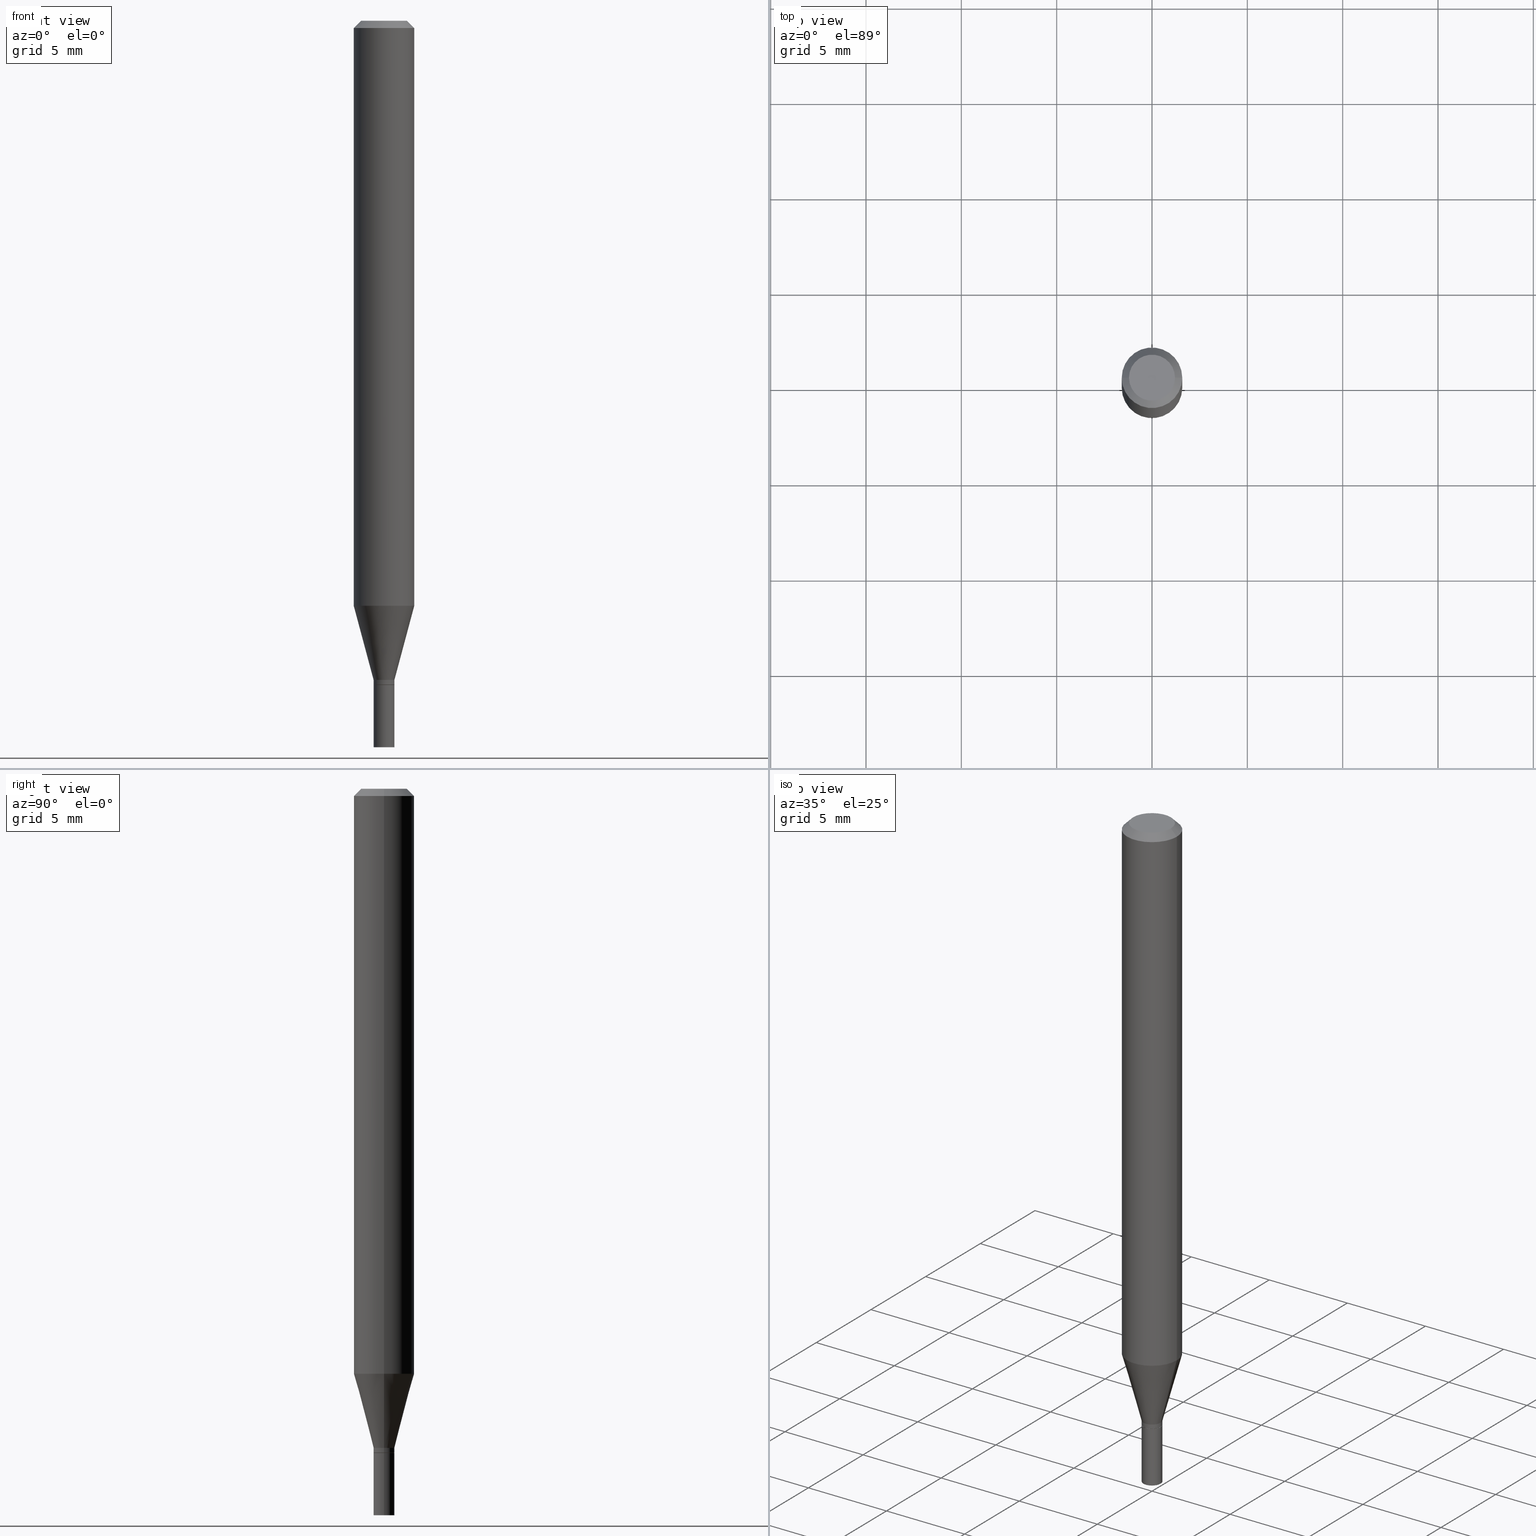
[diagram: canonical four-view strip — front | top / right | iso, engineering-drawing reading convention]
A machine part, canonical four-view strip (front | top / right | iso — engineering-drawing reading convention). The complete STEP part file that produces these views, byte-faithful:
ISO-10303-21;
HEADER;
FILE_DESCRIPTION (( 'STEP AP203' ),
    '1' );
FILE_NAME ('01194.STEP',
    '2024-03-19T23:52:59',
    ( '' ),
    ( '' ),
    'SwSTEP 2.0',
    'SolidWorks 2023',
    '' );
FILE_SCHEMA (( 'CONFIG_CONTROL_DESIGN' ));
ENDSEC;

DATA;
#1 = ORIENTED_EDGE ( 'NONE', *, *, #51, .T. ) ;
#2 = ORIENTED_EDGE ( 'NONE', *, *, #248, .F. ) ;
#3 = EDGE_CURVE ( 'NONE', #466, #193, #260, .T. ) ;
#4 = CIRCLE ( 'NONE', #77, 0.02150000000000000175 ) ;
#5 = CYLINDRICAL_SURFACE ( 'NONE', #435, 0.06250000000000000000 ) ;
#6 = DIRECTION ( 'NONE',  ( -2.445468806185136877E-29, 3.491481338843145188E-15, 1.000000000000000000 ) ) ;
#7 = CC_DESIGN_DATE_AND_TIME_ASSIGNMENT ( #385, #230, ( #429 ) ) ;
#8 = AXIS2_PLACEMENT_3D ( 'NONE', #61, #316, #455 ) ;
#9 = VECTOR ( 'NONE', #33, 39.37007874015748143 ) ;
#10 = PRODUCT_DEFINITION_FORMATION_WITH_SPECIFIED_SOURCE ( 'ANY', '', #181, .NOT_KNOWN. ) ;
#11 = APPROVAL_STATUS ( 'not_yet_approved' ) ;
#12 = EDGE_CURVE ( 'NONE', #328, #29, #246, .T. ) ;
#13 = DIRECTION ( 'NONE',  ( 1.000000000000000000, -6.982962677686246200E-15, 0.000000000000000000 ) ) ;
#14 = CARTESIAN_POINT ( 'NONE',  ( 0.02149999999999992195, -4.935208872454787015E-15, -1.370500000000000274 ) ) ;
#15 = ADVANCED_FACE ( 'NONE', ( #45 ), #5, .T. ) ;
#16 = CARTESIAN_POINT ( 'NONE',  ( 3.352737733279822651E-29, -4.786820915553953690E-15, -1.371000000000000218 ) ) ;
#17 = CARTESIAN_POINT ( 'NONE',  ( 0.02150000000000000175, -5.387355705834973006E-15, -1.500000000000000222 ) ) ;
#18 = FACE_OUTER_BOUND ( 'NONE', #387, .T. ) ;
#19 = CIRCLE ( 'NONE', #440, 0.02149999999999991848 ) ;
#20 = LOCAL_TIME ( 19, 52, 59.00000000000000000, #445 ) ;
#21 = ORIENTED_EDGE ( 'NONE', *, *, #367, .F. ) ;
#22 = CARTESIAN_POINT ( 'NONE',  ( 0.02099999999999999784, -4.933463131785365512E-15, -1.371000000000000218 ) ) ;
#23 = APPROVAL_DATE_TIME ( #371, #201 ) ;
#24 = ADVANCED_FACE ( 'NONE', ( #406 ), #147, .F. ) ;
#25 = APPROVAL ( #189, 'UNSPECIFIED' ) ;
#26 = CARTESIAN_POINT ( 'NONE',  ( 0.06250000000000000000, -4.811533449433679005E-16, -0.01499999999999999944 ) ) ;
#27 = ORIENTED_EDGE ( 'NONE', *, *, #404, .T. ) ;
#28 = CARTESIAN_POINT ( 'NONE',  ( -0.02149999999999992195, -4.632308486696111694E-15, -1.370500000000000274 ) ) ;
#29 = VERTEX_POINT ( 'NONE', #80 ) ;
#30 = DIRECTION ( 'NONE',  ( -2.445468806185136597E-29, 3.491481338843145583E-15, 1.000000000000000000 ) ) ;
#31 = EDGE_CURVE ( 'NONE', #135, #194, #326, .T. ) ;
#32 = VERTEX_POINT ( 'NONE', #118 ) ;
#33 = DIRECTION ( 'NONE',  ( -2.445468806185136877E-29, 3.491481338843145188E-15, 1.000000000000000000 ) ) ;
#34 = VECTOR ( 'NONE', #411, 39.37007874015748143 ) ;
#35 = EDGE_LOOP ( 'NONE', ( #331, #1, #436, #357 ) ) ;
#36 = CARTESIAN_POINT ( 'NONE',  ( 0.000000000000000000, 0.000000000000000000, 0.000000000000000000 ) ) ;
#37 = ORIENTED_EDGE ( 'NONE', *, *, #225, .T. ) ;
#38 = CIRCLE ( 'NONE', #281, 0.04749999999999999362 ) ;
#39 = DIRECTION ( 'NONE',  ( 1.000000000000000000, -6.982962677686266711E-15, 4.876176775795935793E-29 ) ) ;
#40 = CARTESIAN_POINT ( 'NONE',  ( 3.328283045217970545E-29, -4.751906102165520463E-15, -1.360999999999999988 ) ) ;
#41 = LINE ( 'NONE', #374, #97 ) ;
#42 = DIRECTION ( 'NONE',  ( -0.2588190451025214611, 5.211531920934550253E-15, 0.9659258262890679791 ) ) ;
#43 = PERSON_AND_ORGANIZATION ( #462, #59 ) ;
#44 = ADVANCED_FACE ( 'NONE', ( #92 ), #212, .T. ) ;
#45 = FACE_OUTER_BOUND ( 'NONE', #74, .T. ) ;
#46 = AXIS2_PLACEMENT_3D ( 'NONE', #452, #121, #166 ) ;
#47 = VECTOR ( 'NONE', #298, 39.37007874015748143 ) ;
#48 = DATE_AND_TIME ( #274, #136 ) ;
#49 = CARTESIAN_POINT ( 'NONE',  ( 3.328283045217970545E-29, -4.751906102165520463E-15, -1.360999999999999988 ) ) ;
#50 = CARTESIAN_POINT ( 'NONE',  ( -0.02099999999999999784, -4.637606941044332518E-15, -1.371000000000000218 ) ) ;
#51 = EDGE_CURVE ( 'NONE', #313, #160, #240, .T. ) ;
#52 = DIRECTION ( 'NONE',  ( 2.445468806185136597E-29, -3.491481338843145583E-15, -1.000000000000000000 ) ) ;
#53 = DIRECTION ( 'NONE',  ( -2.445468806185136597E-29, 3.491481338843145583E-15, 1.000000000000000000 ) ) ;
#54 = COORDINATED_UNIVERSAL_TIME_OFFSET ( 5, 0, .BEHIND. ) ;
#55 = CARTESIAN_POINT ( 'NONE',  ( -0.02150000000000000175, -4.859254773720913469E-15, -1.500000000000000222 ) ) ;
#56 = PERSON_AND_ORGANIZATION ( #462, #59 ) ;
#57 = VECTOR ( 'NONE', #200, 39.37007874015748143 ) ;
#58 = AXIS2_PLACEMENT_3D ( 'NONE', #266, #52, #337 ) ;
#59 = ORGANIZATION ( 'UNSPECIFIED', 'UNSPECIFIED', '' ) ;
#60 = DIRECTION ( 'NONE',  ( -1.000000000000000000, 6.982962677686266711E-15, 0.000000000000000000 ) ) ;
#61 = CARTESIAN_POINT ( 'NONE',  ( 3.351514998876730410E-29, -4.785075174884532186E-15, -1.370500000000000274 ) ) ;
#62 = DIRECTION ( 'NONE',  ( 1.000000000000000000, -6.982962677686287221E-15, 0.000000000000000000 ) ) ;
#63 = VERTEX_POINT ( 'NONE', #14 ) ;
#64 = CARTESIAN_POINT ( 'NONE',  ( -0.02149999999999991848, 1.527666881884209607E-16, -1.057571044404800846E-30 ) ) ;
#65 = EDGE_LOOP ( 'NONE', ( #453, #256, #138, #71 ) ) ;
#66 = ORIENTED_EDGE ( 'NONE', *, *, #204, .T. ) ;
#67 = VECTOR ( 'NONE', #341, 39.37007874015748143 ) ;
#68 = ORIENTED_EDGE ( 'NONE', *, *, #306, .T. ) ;
#69 = APPROVAL ( #294, 'UNSPECIFIED' ) ;
#70 = DIRECTION ( 'NONE',  ( 1.000000000000000000, -6.982962677686266711E-15, 4.876176775795935793E-29 ) ) ;
#71 = ORIENTED_EDGE ( 'NONE', *, *, #131, .F. ) ;
#72 = ORIENTED_EDGE ( 'NONE', *, *, #305, .T. ) ;
#73 = LINE ( 'NONE', #397, #9 ) ;
#74 = EDGE_LOOP ( 'NONE', ( #174, #241, #66, #352 ) ) ;
#75 = DIRECTION ( 'NONE',  ( 1.000000000000000000, -6.982962677686267499E-15, 4.876176775795935793E-29 ) ) ;
#76 = ORIENTED_EDGE ( 'NONE', *, *, #324, .T. ) ;
#77 = AXIS2_PLACEMENT_3D ( 'NONE', #443, #272, #410 ) ;
#78 = AXIS2_PLACEMENT_3D ( 'NONE', #209, #309, #180 ) ;
#79 = PERSON_AND_ORGANIZATION_ROLE ( 'creator' ) ;
#80 = CARTESIAN_POINT ( 'NONE',  ( -0.06250000000000000000, -1.690927043394076990E-15, -0.01499999999999999944 ) ) ;
#81 = DATE_AND_TIME ( #407, #420 ) ;
#82 = ADVANCED_FACE ( 'NONE', ( #414 ), #141, .T. ) ;
#83 = DIRECTION ( 'NONE',  ( 0.7071067811865656694, -2.468850131082446387E-15, 0.7071067811865294761 ) ) ;
#84 = COORDINATED_UNIVERSAL_TIME_OFFSET ( 5, 0, .BEHIND. ) ;
#85 = VECTOR ( 'NONE', #42, 39.37007874015748143 ) ;
#86 =( GEOMETRIC_REPRESENTATION_CONTEXT ( 3 ) GLOBAL_UNCERTAINTY_ASSIGNED_CONTEXT ( ( #465 ) ) GLOBAL_UNIT_ASSIGNED_CONTEXT ( ( #425, #257, #140 ) ) REPRESENTATION_CONTEXT ( 'NONE', 'WORKASPACE' ) );
#87 = CC_DESIGN_PERSON_AND_ORGANIZATION_ASSIGNMENT ( #261, #79, ( #10 ) ) ;
#88 = LINE ( 'NONE', #307, #167 ) ;
#89 = DIRECTION ( 'NONE',  ( 1.000000000000000000, -6.982962677686265133E-15, 0.000000000000000000 ) ) ;
#90 = CARTESIAN_POINT ( 'NONE',  ( 3.668203209277705088E-31, -5.237222008264718399E-17, -0.01499999999999999944 ) ) ;
#91 = AXIS2_PLACEMENT_3D ( 'NONE', #36, #402, #103 ) ;
#92 = FACE_OUTER_BOUND ( 'NONE', #286, .T. ) ;
#93 = EDGE_LOOP ( 'NONE', ( #401, #361 ) ) ;
#94 = FACE_OUTER_BOUND ( 'NONE', #427, .T. ) ;
#95 = FACE_OUTER_BOUND ( 'NONE', #175, .T. ) ;
#96 = DIMENSIONAL_EXPONENTS ( 1.000000000000000000, 0.000000000000000000, 0.000000000000000000, 0.000000000000000000, 0.000000000000000000, 0.000000000000000000, 0.000000000000000000 ) ;
#97 = VECTOR ( 'NONE', #6, 39.37007874015748143 ) ;
#98 = EDGE_LOOP ( 'NONE', ( #255, #426, #434, #330 ) ) ;
#99 = DIRECTION ( 'NONE',  ( -2.445468806185136877E-29, 3.491481338843145188E-15, 1.000000000000000000 ) ) ;
#100 = DIRECTION ( 'NONE',  ( -2.445468806185136597E-29, 3.491481338843145583E-15, 1.000000000000000000 ) ) ;
#101 = CARTESIAN_POINT ( 'NONE',  ( 3.668203209277705088E-31, -5.237222008264718399E-17, -0.01499999999999999944 ) ) ;
#102 = ORIENTED_EDGE ( 'NONE', *, *, #229, .F. ) ;
#103 = DIRECTION ( 'NONE',  ( 1.000000000000000000, -6.982962677686265922E-15, 4.876176775795935232E-29 ) ) ;
#104 = CARTESIAN_POINT ( 'NONE',  ( 0.000000000000000000, 0.000000000000000000, 0.000000000000000000 ) ) ;
#105 = EDGE_LOOP ( 'NONE', ( #102, #456 ) ) ;
#106 = DIRECTION ( 'NONE',  ( 1.000000000000000000, -6.982962677686265922E-15, 4.876176775795935793E-29 ) ) ;
#107 = ORIENTED_EDGE ( 'NONE', *, *, #131, .T. ) ;
#108 = DIRECTION ( 'NONE',  ( -2.445468806185136597E-29, 3.491481338843145583E-15, 1.000000000000000000 ) ) ;
#109 = CC_DESIGN_PERSON_AND_ORGANIZATION_ASSIGNMENT ( #277, #148, ( #181 ) ) ;
#110 = AXIS2_PLACEMENT_3D ( 'NONE', #111, #206, #334 ) ;
#111 = CARTESIAN_POINT ( 'NONE',  ( 3.352737733279822651E-29, -4.786820915553953690E-15, -1.371000000000000218 ) ) ;
#112 = PERSON_AND_ORGANIZATION_ROLE ( 'classification_officer' ) ;
#113 = ADVANCED_FACE ( 'NONE', ( #186 ), #231, .F. ) ;
#114 = DIRECTION ( 'NONE',  ( -2.438088387897960049E-29, 3.491481338843145188E-15, 1.000000000000000000 ) ) ;
#115 = DIRECTION ( 'NONE',  ( 1.000000000000000000, -6.982962677686262766E-15, 0.000000000000000000 ) ) ;
#116 = AXIS2_PLACEMENT_3D ( 'NONE', #258, #265, #214 ) ;
#117 = ADVANCED_FACE ( 'NONE', ( #95 ), #405, .T. ) ;
#118 = CARTESIAN_POINT ( 'NONE',  ( 0.02150000000000000175, -4.936954613124208519E-15, -1.371000000000000218 ) ) ;
#119 = MECHANICAL_CONTEXT ( 'NONE', #339, 'mechanical' ) ;
#120 = ORIENTED_EDGE ( 'NONE', *, *, #125, .F. ) ;
#121 = DIRECTION ( 'NONE',  ( -2.445468806185136597E-29, 3.491481338843145583E-15, 1.000000000000000000 ) ) ;
#122 = ORIENTED_EDGE ( 'NONE', *, *, #269, .F. ) ;
#123 = CC_DESIGN_PERSON_AND_ORGANIZATION_ASSIGNMENT ( #216, #146, ( #10 ) ) ;
#124 = CALENDAR_DATE ( 2024, 19, 3 ) ;
#125 = EDGE_CURVE ( 'NONE', #63, #193, #239, .T. ) ;
#126 = DIRECTION ( 'NONE',  ( -1.000000000000000000, 6.982962677686265922E-15, -4.876176775795935793E-29 ) ) ;
#127 = CC_DESIGN_APPROVAL ( #69, ( #143 ) ) ;
#128 = AXIS2_PLACEMENT_3D ( 'NONE', #49, #185, #13 ) ;
#129 = CARTESIAN_POINT ( 'NONE',  ( 0.000000000000000000, 0.000000000000000000, 0.000000000000000000 ) ) ;
#130 = VERTEX_POINT ( 'NONE', #348 ) ;
#131 = EDGE_CURVE ( 'NONE', #323, #32, #317, .T. ) ;
#132 = MANIFOLD_SOLID_BREP ( 'Body-Move/Copy2[2]', #463 ) ;
#133 = ORIENTED_EDGE ( 'NONE', *, *, #125, .T. ) ;
#134 = AXIS2_PLACEMENT_3D ( 'NONE', #342, #444, #115 ) ;
#135 = VERTEX_POINT ( 'NONE', #55 ) ;
#136 = LOCAL_TIME ( 19, 52, 59.00000000000000000, #54 ) ;
#137 = MANIFOLD_SOLID_BREP ( 'Body-Move/Copy2[1]', #375 ) ;
#138 = ORIENTED_EDGE ( 'NONE', *, *, #248, .T. ) ;
#139 = VERTEX_POINT ( 'NONE', #188 ) ;
#140 =( NAMED_UNIT ( * ) SI_UNIT ( $, .STERADIAN. ) SOLID_ANGLE_UNIT ( ) );
#141 = CONICAL_SURFACE ( 'NONE', #464, 0.02099999999999999784, 0.7853981633974739252 ) ;
#142 = CARTESIAN_POINT ( 'NONE',  ( -0.02150000000000000175, -4.859254773720913469E-15, -1.371000000000000218 ) ) ;
#143 = PRODUCT_DEFINITION ( 'UNKNOWN', '', #10, #395 ) ;
#144 = CARTESIAN_POINT ( 'NONE',  ( -3.223020679335594837E-45, 4.601619341103081537E-31, 1.317956160873471783E-16 ) ) ;
#145 = CYLINDRICAL_SURFACE ( 'NONE', #91, 0.02150000000000000175 ) ;
#146 = PERSON_AND_ORGANIZATION_ROLE ( 'design_supplier' ) ;
#147 = PLANE ( 'NONE',  #233 ) ;
#148 = PERSON_AND_ORGANIZATION_ROLE ( 'design_owner' ) ;
#149 = CIRCLE ( 'NONE', #423, 0.04749999999999999362 ) ;
#150 = FACE_OUTER_BOUND ( 'NONE', #105, .T. ) ;
#151 = CARTESIAN_POINT ( 'NONE',  ( 0.06250000000000000000, -4.364351673553916694E-16, 3.047610484872459871E-30 ) ) ;
#152 = DIRECTION ( 'NONE',  ( 1.000000000000000000, -6.982962677686265922E-15, 4.876176775795935793E-29 ) ) ;
#153 = LINE ( 'NONE', #304, #34 ) ;
#154 = PERSON_AND_ORGANIZATION ( #462, #59 ) ;
#155 = DIRECTION ( 'NONE',  ( -2.445468806185136597E-29, 3.491481338843145583E-15, 1.000000000000000000 ) ) ;
#156 = AXIS2_PLACEMENT_3D ( 'NONE', #379, #368, #157 ) ;
#157 = DIRECTION ( 'NONE',  ( 1.000000000000000000, -6.982962677686262766E-15, 0.000000000000000000 ) ) ;
#158 = AXIS2_PLACEMENT_3D ( 'NONE', #268, #196, #232 ) ;
#159 = DIRECTION ( 'NONE',  ( 1.000000000000000000, -6.982962677686287221E-15, 0.000000000000000000 ) ) ;
#160 = VERTEX_POINT ( 'NONE', #28 ) ;
#161 = EDGE_CURVE ( 'NONE', #139, #130, #318, .T. ) ;
#162 = PLANE ( 'NONE',  #360 ) ;
#163 = VERTEX_POINT ( 'NONE', #168 ) ;
#164 =( LENGTH_UNIT ( ) NAMED_UNIT ( * ) SI_UNIT ( $, .METRE. ) );
#165 = CARTESIAN_POINT ( 'NONE',  ( 3.352737733279822651E-29, -4.786820915553953690E-15, -1.371000000000000218 ) ) ;
#166 = DIRECTION ( 'NONE',  ( 1.000000000000000000, -6.982962677686265922E-15, 4.876176775795935232E-29 ) ) ;
#167 = VECTOR ( 'NONE', #447, 39.37007874015748143 ) ;
#168 = CARTESIAN_POINT ( 'NONE',  ( 0.06249999999999999306, -4.654095453761022619E-15, -1.207985916889676270 ) ) ;
#169 = EDGE_LOOP ( 'NONE', ( #454, #173, #250, #459 ) ) ;
#170 = VERTEX_POINT ( 'NONE', #22 ) ;
#171 = CYLINDRICAL_SURFACE ( 'NONE', #344, 0.02149999999999991848 ) ;
#172 = VECTOR ( 'NONE', #234, 39.37007874015748143 ) ;
#173 = ORIENTED_EDGE ( 'NONE', *, *, #12, .T. ) ;
#174 = ORIENTED_EDGE ( 'NONE', *, *, #12, .F. ) ;
#175 = EDGE_LOOP ( 'NONE', ( #205, #279, #355, #76 ) ) ;
#176 = AXIS2_PLACEMENT_3D ( 'NONE', #165, #243, #389 ) ;
#177 = ADVANCED_FACE ( 'NONE', ( #430 ), #171, .T. ) ;
#178 = DIRECTION ( 'NONE',  ( -2.445468806185136597E-29, 3.491481338843145583E-15, 1.000000000000000000 ) ) ;
#179 = DIRECTION ( 'NONE',  ( 1.000000000000000000, -6.982962677686287221E-15, 0.000000000000000000 ) ) ;
#180 = DIRECTION ( 'NONE',  ( 1.000000000000000000, 0.000000000000000000, 0.000000000000000000 ) ) ;
#181 = PRODUCT ( '01194', '01194', '', ( #119 ) ) ;
#182 = CARTESIAN_POINT ( 'NONE',  ( -0.04749999999999999362, 3.578768372314212971E-16, 1.317956160873447624E-16 ) ) ;
#183 = CONICAL_SURFACE ( 'NONE', #264, 0.02149999999999991848, 0.2617993877991501850 ) ;
#184 = VECTOR ( 'NONE', #99, 39.37007874015748143 ) ;
#185 = DIRECTION ( 'NONE',  ( -2.445468806185136597E-29, 3.491481338843145583E-15, 1.000000000000000000 ) ) ;
#186 = FACE_OUTER_BOUND ( 'NONE', #293, .T. ) ;
#187 = ADVANCED_FACE ( 'NONE', ( #207 ), #413, .T. ) ;
#188 = CARTESIAN_POINT ( 'NONE',  ( 0.04749999999999999362, -4.035134999187576158E-16, 1.317956160873497667E-16 ) ) ;
#189 = APPROVAL_STATUS ( 'not_yet_approved' ) ;
#190 = CIRCLE ( 'NONE', #8, 0.02149999999999992195 ) ;
#191 = DATE_AND_TIME ( #236, #213 ) ;
#192 = EDGE_CURVE ( 'NONE', #328, #163, #254, .T. ) ;
#193 = VERTEX_POINT ( 'NONE', #273 ) ;
#194 = VERTEX_POINT ( 'NONE', #17 ) ;
#195 = CIRCLE ( 'NONE', #222, 0.02150000000000000175 ) ;
#196 = DIRECTION ( 'NONE',  ( -2.445468806185136597E-29, 3.491481338843145583E-15, 1.000000000000000000 ) ) ;
#197 = DIRECTION ( 'NONE',  ( -2.445468806185136597E-29, 3.491481338843145583E-15, 1.000000000000000000 ) ) ;
#198 = ORIENTED_EDGE ( 'NONE', *, *, #210, .F. ) ;
#199 = DIRECTION ( 'NONE',  ( -2.445468806185136597E-29, 3.491481338843145583E-15, 1.000000000000000000 ) ) ;
#200 = DIRECTION ( 'NONE',  ( -2.445468806185136877E-29, 3.491481338843145188E-15, 1.000000000000000000 ) ) ;
#201 = APPROVAL ( #11, 'UNSPECIFIED' ) ;
#202 = ORIENTED_EDGE ( 'NONE', *, *, #327, .T. ) ;
#203 = DIRECTION ( 'NONE',  ( -2.445468806185136597E-29, 3.491481338843145583E-15, 1.000000000000000000 ) ) ;
#204 = EDGE_CURVE ( 'NONE', #163, #130, #340, .T. ) ;
#205 = ORIENTED_EDGE ( 'NONE', *, *, #161, .F. ) ;
#206 = DIRECTION ( 'NONE',  ( -2.445468806185136597E-29, 3.491481338843145583E-15, 1.000000000000000000 ) ) ;
#207 = FACE_OUTER_BOUND ( 'NONE', #391, .T. ) ;
#208 = ORIENTED_EDGE ( 'NONE', *, *, #367, .T. ) ;
#209 = CARTESIAN_POINT ( 'NONE',  ( 0.000000000000000000, 0.000000000000000000, 0.000000000000000000 ) ) ;
#210 = EDGE_CURVE ( 'NONE', #32, #323, #195, .T. ) ;
#211 = CARTESIAN_POINT ( 'NONE',  ( 3.351514998876730410E-29, -4.785075174884532186E-15, -1.370500000000000274 ) ) ;
#212 = CONICAL_SURFACE ( 'NONE', #310, 0.02099999999999999784, 0.7853981633974739252 ) ;
#213 = LOCAL_TIME ( 19, 52, 59.00000000000000000, #419 ) ;
#214 = DIRECTION ( 'NONE',  ( 1.000000000000000000, -6.982962677686266711E-15, 0.000000000000000000 ) ) ;
#215 = CALENDAR_DATE ( 2024, 19, 3 ) ;
#216 = PERSON_AND_ORGANIZATION ( #462, #59 ) ;
#217 = DATE_TIME_ROLE ( 'creation_date' ) ;
#218 = CARTESIAN_POINT ( 'NONE',  ( -0.06249999999999999306, -3.773571076555568334E-15, -1.207985916889676270 ) ) ;
#219 = DIRECTION ( 'NONE',  ( -2.445468806185136597E-29, 3.491481338843145583E-15, 1.000000000000000000 ) ) ;
#220 = CARTESIAN_POINT ( 'NONE',  ( 3.352737733279822651E-29, -4.786820915553953690E-15, -1.371000000000000218 ) ) ;
#221 = PERSON_AND_ORGANIZATION ( #462, #59 ) ;
#222 = AXIS2_PLACEMENT_3D ( 'NONE', #220, #223, #89 ) ;
#223 = DIRECTION ( 'NONE',  ( -2.445468806185136597E-29, 3.491481338843145583E-15, 1.000000000000000000 ) ) ;
#224 = CARTESIAN_POINT ( 'NONE',  ( 0.000000000000000000, 0.000000000000000000, 0.000000000000000000 ) ) ;
#225 = EDGE_CURVE ( 'NONE', #466, #328, #373, .T. ) ;
#226 = PRODUCT_RELATED_PRODUCT_CATEGORY ( 'detail', '', ( #181 ) ) ;
#227 = CARTESIAN_POINT ( 'NONE',  ( 3.352737733279822651E-29, -4.786820915553953690E-15, -1.371000000000000218 ) ) ;
#228 = EDGE_LOOP ( 'NONE', ( #244, #292, #21, #120 ) ) ;
#229 = EDGE_CURVE ( 'NONE', #194, #135, #4, .T. ) ;
#230 = DATE_TIME_ROLE ( 'classification_date' ) ;
#231 = PLANE ( 'NONE',  #448 ) ;
#232 = DIRECTION ( 'NONE',  ( 1.000000000000000000, -6.982962677686267499E-15, 4.876176775795935793E-29 ) ) ;
#233 = AXIS2_PLACEMENT_3D ( 'NONE', #267, #114, #152 ) ;
#234 = DIRECTION ( 'NONE',  ( -2.445468806185136877E-29, 3.491481338843145188E-15, 1.000000000000000000 ) ) ;
#235 = EDGE_CURVE ( 'NONE', #170, #313, #449, .T. ) ;
#236 = CALENDAR_DATE ( 2024, 19, 3 ) ;
#237 = DIRECTION ( 'NONE',  ( -2.445468806185136597E-29, 3.491481338843145583E-15, 1.000000000000000000 ) ) ;
#238 = ORIENTED_EDGE ( 'NONE', *, *, #161, .T. ) ;
#239 = LINE ( 'NONE', #322, #172 ) ;
#240 = LINE ( 'NONE', #50, #67 ) ;
#241 = ORIENTED_EDGE ( 'NONE', *, *, #192, .T. ) ;
#242 = CARTESIAN_POINT ( 'NONE',  ( 3.328283045217970545E-29, -4.751906102165520463E-15, -1.360999999999999988 ) ) ;
#243 = DIRECTION ( 'NONE',  ( -2.445468806185136597E-29, 3.491481338843145583E-15, 1.000000000000000000 ) ) ;
#244 = ORIENTED_EDGE ( 'NONE', *, *, #417, .T. ) ;
#245 = CIRCLE ( 'NONE', #428, 0.02149999999999992195 ) ;
#246 = LINE ( 'NONE', #394, #57 ) ;
#247 = DIRECTION ( 'NONE',  ( 1.000000000000000000, -6.982962677686246200E-15, 0.000000000000000000 ) ) ;
#248 = EDGE_CURVE ( 'NONE', #194, #32, #41, .T. ) ;
#249 = DIRECTION ( 'NONE',  ( 1.000000000000000000, -6.982962677686266711E-15, 0.000000000000000000 ) ) ;
#250 = ORIENTED_EDGE ( 'NONE', *, *, #372, .F. ) ;
#251 = APPLICATION_PROTOCOL_DEFINITION ( 'international standard', 'config_control_design', 1994, #339 ) ;
#252 = APPROVAL_PERSON_ORGANIZATION ( #43, #201, #376 ) ;
#253 = ADVANCED_FACE ( 'NONE', ( #439 ), #377, .T. ) ;
#254 = CIRCLE ( 'NONE', #134, 0.06250000000000000000 ) ;
#255 = ORIENTED_EDGE ( 'NONE', *, *, #225, .F. ) ;
#256 = ORIENTED_EDGE ( 'NONE', *, *, #31, .T. ) ;
#257 =( NAMED_UNIT ( * ) PLANE_ANGLE_UNIT ( ) SI_UNIT ( $, .RADIAN. ) );
#258 = CARTESIAN_POINT ( 'NONE',  ( 3.668203209277705088E-31, -5.237222008264718399E-17, -0.01499999999999999944 ) ) ;
#259 = PLANE ( 'NONE',  #262 ) ;
#260 = CIRCLE ( 'NONE', #412, 0.02149999999999991848 ) ;
#261 = PERSON_AND_ORGANIZATION ( #462, #59 ) ;
#262 = AXIS2_PLACEMENT_3D ( 'NONE', #303, #442, #106 ) ;
#263 = DIRECTION ( 'NONE',  ( -2.445468806185136597E-29, 3.491481338843145583E-15, 1.000000000000000000 ) ) ;
#264 = AXIS2_PLACEMENT_3D ( 'NONE', #40, #438, #329 ) ;
#265 = DIRECTION ( 'NONE',  ( -2.445468806185136597E-29, 3.491481338843145583E-15, 1.000000000000000000 ) ) ;
#266 = CARTESIAN_POINT ( 'NONE',  ( 3.668203209277705088E-31, -5.237222008264718399E-17, -0.01499999999999999944 ) ) ;
#267 = CARTESIAN_POINT ( 'NONE',  ( 3.352737733279822651E-29, -4.786820915553953690E-15, -1.371000000000000218 ) ) ;
#268 = CARTESIAN_POINT ( 'NONE',  ( 0.000000000000000000, 0.000000000000000000, 0.000000000000000000 ) ) ;
#269 = EDGE_CURVE ( 'NONE', #193, #163, #88, .T. ) ;
#270 = FACE_OUTER_BOUND ( 'NONE', #169, .T. ) ;
#271 = PRODUCT_DEFINITION_SHAPE ( 'NONE', 'NONE',  #143 ) ;
#272 = DIRECTION ( 'NONE',  ( -2.445468806185136597E-29, 3.491481338843145583E-15, 1.000000000000000000 ) ) ;
#273 = CARTESIAN_POINT ( 'NONE',  ( 0.02149999999999991848, -4.902039799735774503E-15, -1.360999999999999988 ) ) ;
#274 = CALENDAR_DATE ( 2024, 19, 3 ) ;
#275 = CIRCLE ( 'NONE', #156, 0.06250000000000000000 ) ;
#276 = EDGE_CURVE ( 'NONE', #163, #328, #275, .T. ) ;
#277 = PERSON_AND_ORGANIZATION ( #462, #59 ) ;
#278 = APPROVAL_ROLE ( '' ) ;
#279 = ORIENTED_EDGE ( 'NONE', *, *, #333, .F. ) ;
#280 = APPROVAL_PERSON_ORGANIZATION ( #154, #69, #381 ) ;
#281 = AXIS2_PLACEMENT_3D ( 'NONE', #370, #155, #418 ) ;
#282 = DIRECTION ( 'NONE',  ( -1.000000000000000000, 6.982962677686265922E-15, -4.876176775795935793E-29 ) ) ;
#283 = APPROVAL_PERSON_ORGANIZATION ( #56, #25, #278 ) ;
#284 = FACE_OUTER_BOUND ( 'NONE', #228, .T. ) ;
#285 = DIRECTION ( 'NONE',  ( 1.000000000000000000, -6.982962677686265133E-15, 0.000000000000000000 ) ) ;
#286 = EDGE_LOOP ( 'NONE', ( #416, #72, #202, #363 ) ) ;
#287 = LENGTH_MEASURE_WITH_UNIT ( LENGTH_MEASURE( 0.02539999999999999897 ), #164 );
#288 = APPLICATION_CONTEXT ( 'configuration controlled 3d designs of mechanical parts and assemblies' ) ;
#289 = AXIS2_PLACEMENT_3D ( 'NONE', #101, #30, #249 ) ;
#290 = ADVANCED_FACE ( 'NONE', ( #150 ), #259, .F. ) ;
#291 = CARTESIAN_POINT ( 'NONE',  ( 3.328283045217970545E-29, -4.751906102165520463E-15, -1.360999999999999988 ) ) ;
#292 = ORIENTED_EDGE ( 'NONE', *, *, #437, .T. ) ;
#293 = EDGE_LOOP ( 'NONE', ( #347, #107 ) ) ;
#294 = APPROVAL_STATUS ( 'not_yet_approved' ) ;
#295 = LINE ( 'NONE', #408, #392 ) ;
#296 = CARTESIAN_POINT ( 'NONE',  ( 1.501336975702882323E-16, 0.02149999999999521391, -1.371000000000000218 ) ) ;
#297 = SHAPE_DEFINITION_REPRESENTATION ( #271, #315 ) ;
#298 = DIRECTION ( 'NONE',  ( -2.445468806185136877E-29, 3.491481338843145188E-15, 1.000000000000000000 ) ) ;
#299 = SECURITY_CLASSIFICATION_LEVEL ( 'unclassified' ) ;
#300 = PERSON_AND_ORGANIZATION_ROLE ( 'creator' ) ;
#301 = ADVANCED_FACE ( 'NONE', ( #336 ), #145, .T. ) ;
#302 = CIRCLE ( 'NONE', #110, 0.02099999999999999784 ) ;
#303 = CARTESIAN_POINT ( 'NONE',  ( 3.584916967085606921E-29, -5.356492647442320375E-15, -1.500000000000000222 ) ) ;
#304 = CARTESIAN_POINT ( 'NONE',  ( -0.06250000000000000000, 3.840629472727444916E-16, -0.01499999999999999944 ) ) ;
#305 = EDGE_CURVE ( 'NONE', #313, #170, #302, .T. ) ;
#306 = EDGE_CURVE ( 'NONE', #160, #63, #245, .T. ) ;
#307 = CARTESIAN_POINT ( 'NONE',  ( 0.02149999999999991848, -4.902039799735774503E-15, -1.360999999999999988 ) ) ;
#308 = CARTESIAN_POINT ( 'NONE',  ( -0.02149999999999991848, -4.599139413977099971E-15, -1.360999999999999988 ) ) ;
#309 = DIRECTION ( 'NONE',  ( 0.000000000000000000, 0.000000000000000000, 1.000000000000000000 ) ) ;
#310 = AXIS2_PLACEMENT_3D ( 'NONE', #386, #320, #159 ) ;
#311 = CYLINDRICAL_SURFACE ( 'NONE', #46, 0.02150000000000000175 ) ;
#312 = ORIENTED_EDGE ( 'NONE', *, *, #372, .T. ) ;
#313 = VERTEX_POINT ( 'NONE', #332 ) ;
#314 = CC_DESIGN_PERSON_AND_ORGANIZATION_ASSIGNMENT ( #441, #112, ( #429 ) ) ;
#315 = ADVANCED_BREP_SHAPE_REPRESENTATION ( '01194', ( #137, #132, #78 ), #86 ) ;
#316 = DIRECTION ( 'NONE',  ( -2.445468806185136597E-29, 3.491481338843145583E-15, 1.000000000000000000 ) ) ;
#317 = CIRCLE ( 'NONE', #176, 0.02150000000000000175 ) ;
#318 = LINE ( 'NONE', #26, #351 ) ;
#319 = CC_DESIGN_APPROVAL ( #25, ( #429 ) ) ;
#320 = DIRECTION ( 'NONE',  ( -2.445468806185136597E-29, 3.491481338843145583E-15, 1.000000000000000000 ) ) ;
#321 = DIRECTION ( 'NONE',  ( 2.438088387897960049E-29, -3.491481338843145188E-15, -1.000000000000000000 ) ) ;
#322 = CARTESIAN_POINT ( 'NONE',  ( 0.02149999999999991848, -1.501336975702541880E-16, 1.048378006796122174E-30 ) ) ;
#323 = VERTEX_POINT ( 'NONE', #142 ) ;
#324 = EDGE_CURVE ( 'NONE', #29, #130, #383, .T. ) ;
#325 = ORIENTED_EDGE ( 'NONE', *, *, #404, .F. ) ;
#326 = CIRCLE ( 'NONE', #457, 0.02150000000000000175 ) ;
#327 = EDGE_CURVE ( 'NONE', #170, #63, #295, .T. ) ;
#328 = VERTEX_POINT ( 'NONE', #218 ) ;
#329 = DIRECTION ( 'NONE',  ( 1.000000000000000000, -6.982962677686246200E-15, 0.000000000000000000 ) ) ;
#330 = ORIENTED_EDGE ( 'NONE', *, *, #192, .F. ) ;
#331 = ORIENTED_EDGE ( 'NONE', *, *, #235, .T. ) ;
#332 = CARTESIAN_POINT ( 'NONE',  ( -0.02099999999999999784, -4.634957713870222106E-15, -1.371000000000000218 ) ) ;
#333 = EDGE_CURVE ( 'NONE', #393, #139, #38, .T. ) ;
#334 = DIRECTION ( 'NONE',  ( 1.000000000000000000, -6.982962677686287221E-15, 0.000000000000000000 ) ) ;
#335 = CC_DESIGN_PERSON_AND_ORGANIZATION_ASSIGNMENT ( #221, #300, ( #143 ) ) ;
#336 = FACE_OUTER_BOUND ( 'NONE', #65, .T. ) ;
#337 = DIRECTION ( 'NONE',  ( -1.000000000000000000, 6.982962677686266711E-15, 0.000000000000000000 ) ) ;
#338 = AXIS2_PLACEMENT_3D ( 'NONE', #16, #219, #179 ) ;
#339 = APPLICATION_CONTEXT ( 'configuration controlled 3d designs of mechanical parts and assemblies' ) ;
#340 = LINE ( 'NONE', #151, #47 ) ;
#341 = DIRECTION ( 'NONE',  ( -0.7071067811865656694, 7.493145998870420424E-15, 0.7071067811865294761 ) ) ;
#342 = CARTESIAN_POINT ( 'NONE',  ( 2.954091878064654281E-29, -4.217660286405631739E-15, -1.207985916889676270 ) ) ;
#343 = ORIENTED_EDGE ( 'NONE', *, *, #3, .F. ) ;
#344 = AXIS2_PLACEMENT_3D ( 'NONE', #104, #203, #75 ) ;
#345 = DIRECTION ( 'NONE',  ( 0.7071067811865444641, -7.319954787623245001E-15, -0.7071067811865505703 ) ) ;
#346 = EDGE_CURVE ( 'NONE', #393, #29, #153, .T. ) ;
#347 = ORIENTED_EDGE ( 'NONE', *, *, #210, .T. ) ;
#348 = CARTESIAN_POINT ( 'NONE',  ( 0.06250000000000000000, -4.888073874380388472E-16, -0.01499999999999999944 ) ) ;
#349 = ORIENTED_EDGE ( 'NONE', *, *, #390, .T. ) ;
#350 = CYLINDRICAL_SURFACE ( 'NONE', #422, 0.06250000000000000000 ) ;
#351 = VECTOR ( 'NONE', #345, 39.37007874015748143 ) ;
#352 = ORIENTED_EDGE ( 'NONE', *, *, #324, .F. ) ;
#353 = LINE ( 'NONE', #64, #184 ) ;
#354 = ADVANCED_FACE ( 'NONE', ( #270 ), #350, .T. ) ;
#355 = ORIENTED_EDGE ( 'NONE', *, *, #346, .T. ) ;
#356 = DIRECTION ( 'NONE',  ( 1.000000000000000000, -6.982962677686246200E-15, 0.000000000000000000 ) ) ;
#357 = ORIENTED_EDGE ( 'NONE', *, *, #327, .F. ) ;
#358 = CARTESIAN_POINT ( 'NONE',  ( 3.316907271900976096E-16, 0.04749999999999999362, -9.994755555137580731E-17 ) ) ;
#359 = CC_DESIGN_SECURITY_CLASSIFICATION ( #429, ( #10 ) ) ;
#360 = AXIS2_PLACEMENT_3D ( 'NONE', #358, #321, #126 ) ;
#361 = ORIENTED_EDGE ( 'NONE', *, *, #305, .F. ) ;
#362 = FACE_OUTER_BOUND ( 'NONE', #98, .T. ) ;
#363 = ORIENTED_EDGE ( 'NONE', *, *, #306, .F. ) ;
#364 = EDGE_LOOP ( 'NONE', ( #208, #37, #431, #122 ) ) ;
#365 = AXIS2_PLACEMENT_3D ( 'NONE', #90, #458, #60 ) ;
#366 = CC_DESIGN_APPROVAL ( #201, ( #10 ) ) ;
#367 = EDGE_CURVE ( 'NONE', #193, #466, #19, .T. ) ;
#368 = DIRECTION ( 'NONE',  ( -2.445468806185136597E-29, 3.491481338843145583E-15, 1.000000000000000000 ) ) ;
#369 = APPROVAL_DATE_TIME ( #48, #69 ) ;
#370 = CARTESIAN_POINT ( 'NONE',  ( -3.223020679335594837E-45, 4.601619341103081537E-31, 1.317956160873471783E-16 ) ) ;
#371 = DATE_AND_TIME ( #215, #20 ) ;
#372 = EDGE_CURVE ( 'NONE', #130, #29, #400, .T. ) ;
#373 = LINE ( 'NONE', #308, #85 ) ;
#374 = CARTESIAN_POINT ( 'NONE',  ( 0.02150000000000000175, -1.501336975702547303E-16, 1.048378006796126202E-30 ) ) ;
#375 = CLOSED_SHELL ( 'NONE', ( #409, #290, #301, #113 ) ) ;
#376 = APPROVAL_ROLE ( '' ) ;
#377 = CONICAL_SURFACE ( 'NONE', #128, 0.02149999999999991848, 0.2617993877991501850 ) ;
#378 = DIRECTION ( 'NONE',  ( 2.438088387897960049E-29, -3.491481338843145188E-15, -1.000000000000000000 ) ) ;
#379 = CARTESIAN_POINT ( 'NONE',  ( 2.954091878064654281E-29, -4.217660286405631739E-15, -1.207985916889676270 ) ) ;
#380 = COORDINATED_UNIVERSAL_TIME_OFFSET ( 5, 0, .BEHIND. ) ;
#381 = APPROVAL_ROLE ( '' ) ;
#382 = CARTESIAN_POINT ( 'NONE',  ( -0.02149999999999991848, -4.186355245266334152E-15, -1.360999999999999988 ) ) ;
#383 = CIRCLE ( 'NONE', #116, 0.06250000000000000000 ) ;
#384 = ADVANCED_FACE ( 'NONE', ( #94 ), #162, .F. ) ;
#385 = DATE_AND_TIME ( #124, #398 ) ;
#386 = CARTESIAN_POINT ( 'NONE',  ( 3.352737733279822651E-29, -4.786820915553953690E-15, -1.371000000000000218 ) ) ;
#387 = EDGE_LOOP ( 'NONE', ( #396, #349, #198, #2 ) ) ;
#388 = ADVANCED_FACE ( 'NONE', ( #362 ), #183, .T. ) ;
#389 = DIRECTION ( 'NONE',  ( 1.000000000000000000, -6.982962677686265133E-15, 0.000000000000000000 ) ) ;
#390 = EDGE_CURVE ( 'NONE', #135, #323, #73, .T. ) ;
#391 = EDGE_LOOP ( 'NONE', ( #325, #238, #312, #450 ) ) ;
#392 = VECTOR ( 'NONE', #83, 39.37007874015748143 ) ;
#393 = VERTEX_POINT ( 'NONE', #182 ) ;
#394 = CARTESIAN_POINT ( 'NONE',  ( -0.06250000000000000000, 4.440892098500626162E-16, -3.074334431409316114E-30 ) ) ;
#395 = DESIGN_CONTEXT ( 'detailed design', #288, 'design' ) ;
#396 = ORIENTED_EDGE ( 'NONE', *, *, #229, .T. ) ;
#397 = CARTESIAN_POINT ( 'NONE',  ( -0.02150000000000000175, 1.527666881884215524E-16, -1.057571044404804700E-30 ) ) ;
#398 = LOCAL_TIME ( 19, 52, 59.00000000000000000, #380 ) ;
#399 = DIRECTION ( 'NONE',  ( 1.000000000000000000, -6.982962677686290376E-15, 0.000000000000000000 ) ) ;
#400 = CIRCLE ( 'NONE', #289, 0.06250000000000000000 ) ;
#401 = ORIENTED_EDGE ( 'NONE', *, *, #235, .F. ) ;
#402 = DIRECTION ( 'NONE',  ( -2.445468806185136597E-29, 3.491481338843145583E-15, 1.000000000000000000 ) ) ;
#403 = ORIENTED_EDGE ( 'NONE', *, *, #437, .F. ) ;
#404 = EDGE_CURVE ( 'NONE', #139, #393, #149, .T. ) ;
#405 = CONICAL_SURFACE ( 'NONE', #365, 0.06250000000000000000, 0.7853981633974439491 ) ;
#406 = FACE_OUTER_BOUND ( 'NONE', #93, .T. ) ;
#407 = CALENDAR_DATE ( 2024, 19, 3 ) ;
#408 = CARTESIAN_POINT ( 'NONE',  ( 0.02099999999999999784, -4.933463131785365512E-15, -1.371000000000000218 ) ) ;
#409 = ADVANCED_FACE ( 'NONE', ( #18 ), #311, .T. ) ;
#410 = DIRECTION ( 'NONE',  ( 1.000000000000000000, -6.982962677686265133E-15, 0.000000000000000000 ) ) ;
#411 = DIRECTION ( 'NONE',  ( -0.7071067811865444641, 2.468850131082224717E-15, -0.7071067811865505703 ) ) ;
#412 = AXIS2_PLACEMENT_3D ( 'NONE', #291, #100, #247 ) ;
#413 = CONICAL_SURFACE ( 'NONE', #58, 0.06250000000000000000, 0.7853981633974439491 ) ;
#414 = FACE_OUTER_BOUND ( 'NONE', #35, .T. ) ;
#415 = APPLICATION_PROTOCOL_DEFINITION ( 'international standard', 'config_control_design', 1994, #288 ) ;
#416 = ORIENTED_EDGE ( 'NONE', *, *, #51, .F. ) ;
#417 = EDGE_CURVE ( 'NONE', #63, #160, #190, .T. ) ;
#418 = DIRECTION ( 'NONE',  ( 1.000000000000000000, -6.982962677686267499E-15, 4.884662768193073002E-29 ) ) ;
#419 = COORDINATED_UNIVERSAL_TIME_OFFSET ( 5, 0, .BEHIND. ) ;
#420 = LOCAL_TIME ( 19, 52, 59.00000000000000000, #84 ) ;
#421 = CARTESIAN_POINT ( 'NONE',  ( 3.668203209277704895E-29, -5.237222008264718177E-15, -1.500000000000000222 ) ) ;
#422 = AXIS2_PLACEMENT_3D ( 'NONE', #129, #197, #70 ) ;
#423 = AXIS2_PLACEMENT_3D ( 'NONE', #144, #263, #446 ) ;
#424 = CYLINDRICAL_SURFACE ( 'NONE', #158, 0.02149999999999991848 ) ;
#425 =( CONVERSION_BASED_UNIT ( 'INCH', #287 ) LENGTH_UNIT ( ) NAMED_UNIT ( #96 ) );
#426 = ORIENTED_EDGE ( 'NONE', *, *, #3, .T. ) ;
#427 = EDGE_LOOP ( 'NONE', ( #432, #27 ) ) ;
#428 = AXIS2_PLACEMENT_3D ( 'NONE', #211, #178, #399 ) ;
#429 = SECURITY_CLASSIFICATION ( '', '', #299 ) ;
#430 = FACE_OUTER_BOUND ( 'NONE', #461, .T. ) ;
#431 = ORIENTED_EDGE ( 'NONE', *, *, #276, .F. ) ;
#432 = ORIENTED_EDGE ( 'NONE', *, *, #333, .T. ) ;
#433 = ADVANCED_FACE ( 'NONE', ( #284 ), #424, .T. ) ;
#434 = ORIENTED_EDGE ( 'NONE', *, *, #269, .T. ) ;
#435 = AXIS2_PLACEMENT_3D ( 'NONE', #224, #108, #39 ) ;
#436 = ORIENTED_EDGE ( 'NONE', *, *, #417, .F. ) ;
#437 = EDGE_CURVE ( 'NONE', #160, #466, #353, .T. ) ;
#438 = DIRECTION ( 'NONE',  ( -2.445468806185136597E-29, 3.491481338843145583E-15, 1.000000000000000000 ) ) ;
#439 = FACE_OUTER_BOUND ( 'NONE', #364, .T. ) ;
#440 = AXIS2_PLACEMENT_3D ( 'NONE', #242, #199, #356 ) ;
#441 = PERSON_AND_ORGANIZATION ( #462, #59 ) ;
#442 = DIRECTION ( 'NONE',  ( -2.438088387897960049E-29, 3.491481338843145188E-15, 1.000000000000000000 ) ) ;
#443 = CARTESIAN_POINT ( 'NONE',  ( 3.668203209277704895E-29, -5.237222008264718177E-15, -1.500000000000000222 ) ) ;
#444 = DIRECTION ( 'NONE',  ( -2.445468806185136597E-29, 3.491481338843145583E-15, 1.000000000000000000 ) ) ;
#445 = COORDINATED_UNIVERSAL_TIME_OFFSET ( 5, 0, .BEHIND. ) ;
#446 = DIRECTION ( 'NONE',  ( 1.000000000000000000, -6.982962677686267499E-15, 4.884662768193073002E-29 ) ) ;
#447 = DIRECTION ( 'NONE',  ( 0.2588190451025214611, 1.565188264969620982E-15, 0.9659258262890679791 ) ) ;
#448 = AXIS2_PLACEMENT_3D ( 'NONE', #296, #378, #282 ) ;
#449 = CIRCLE ( 'NONE', #338, 0.02099999999999999784 ) ;
#450 = ORIENTED_EDGE ( 'NONE', *, *, #346, .F. ) ;
#451 = CC_DESIGN_DATE_AND_TIME_ASSIGNMENT ( #81, #217, ( #143 ) ) ;
#452 = CARTESIAN_POINT ( 'NONE',  ( 0.000000000000000000, 0.000000000000000000, 0.000000000000000000 ) ) ;
#453 = ORIENTED_EDGE ( 'NONE', *, *, #390, .F. ) ;
#454 = ORIENTED_EDGE ( 'NONE', *, *, #276, .T. ) ;
#455 = DIRECTION ( 'NONE',  ( 1.000000000000000000, -6.982962677686290376E-15, 0.000000000000000000 ) ) ;
#456 = ORIENTED_EDGE ( 'NONE', *, *, #31, .F. ) ;
#457 = AXIS2_PLACEMENT_3D ( 'NONE', #421, #237, #285 ) ;
#458 = DIRECTION ( 'NONE',  ( 2.445468806185136597E-29, -3.491481338843145583E-15, -1.000000000000000000 ) ) ;
#459 = ORIENTED_EDGE ( 'NONE', *, *, #204, .F. ) ;
#460 = APPROVAL_DATE_TIME ( #191, #25 ) ;
#461 = EDGE_LOOP ( 'NONE', ( #403, #68, #133, #343 ) ) ;
#462 = PERSON ( 'UNSPECIFIED', 'UNSPECIFIED', 'UNSPECIFIED', ('UNSPECIFIED'), ('UNSPECIFIED'), ('UNSPECIFIED') ) ;
#463 = CLOSED_SHELL ( 'NONE', ( #433, #82, #187, #354, #253, #388, #15, #117, #384, #24, #44, #177 ) ) ;
#464 = AXIS2_PLACEMENT_3D ( 'NONE', #227, #53, #62 ) ;
#465 = UNCERTAINTY_MEASURE_WITH_UNIT (LENGTH_MEASURE( 1.000000000000000082E-05 ), #425, 'distance_accuracy_value', 'NONE');
#466 = VERTEX_POINT ( 'NONE', #382 ) ;
ENDSEC;
END-ISO-10303-21;
